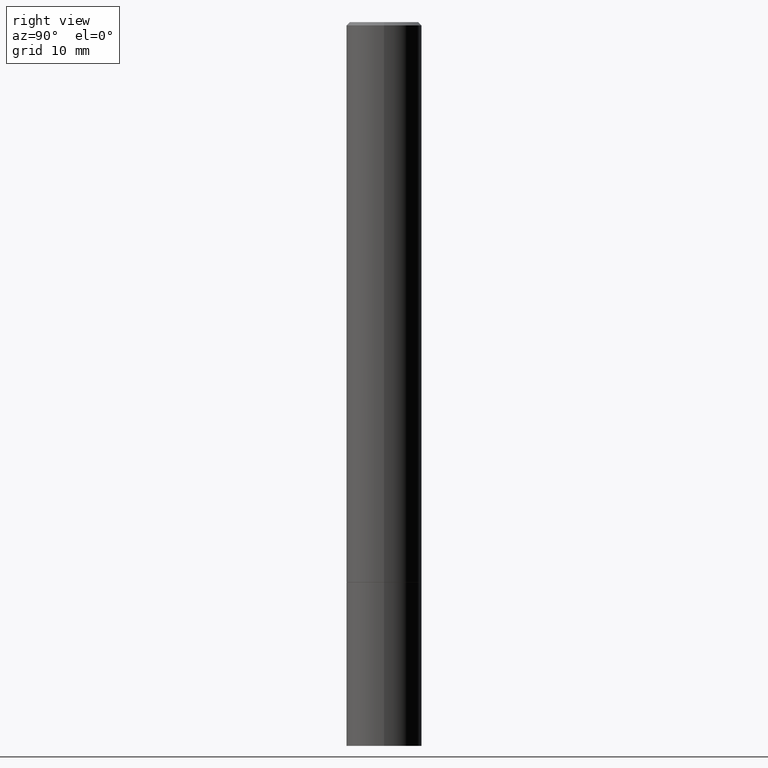
[diagram: clean part render]
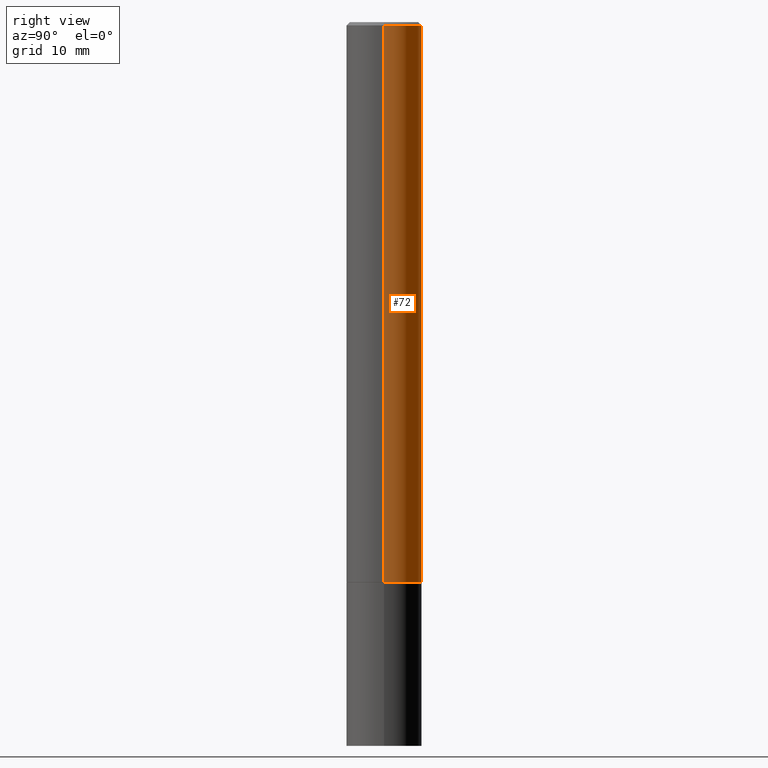
[diagram: same view with one face highlighted and labeled with its STEP entity id]
A machine part, right view. The second image highlights one B-rep face of the part: STEP entity #72.
In plain terms, the highlighted cylindrical surface (partial cylindrical patch) has radius 5.9995 mm, axis along (-0, 0, 1).
Its self-contained STEP definition (entity closure, byte-faithful):
#7 = LINE ( 'NONE', #111, #307 ) ;
#9 = AXIS2_PLACEMENT_3D ( 'NONE', #294, #138, #312 ) ;
#25 = EDGE_CURVE ( 'NONE', #357, #364, #7, .T. ) ;
#27 = ORIENTED_EDGE ( 'NONE', *, *, #247, .F. ) ;
#40 = CARTESIAN_POINT ( 'NONE',  ( -0.2361999999999995214, 1.579546157692629677E-15, -0.02000000000000006287 ) ) ;
#48 = DIRECTION ( 'NONE',  ( 1.000000000000000000, -6.982962677686265133E-15, 0.000000000000000000 ) ) ;
#52 = ORIENTED_EDGE ( 'NONE', *, *, #25, .F. ) ;
#72 = ADVANCED_FACE ( 'NONE', ( #95 ), #213, .T. ) ;
#73 = VECTOR ( 'NONE', #317, 39.37007874015748143 ) ;
#74 = DIRECTION ( 'NONE',  ( -2.445468806185136597E-29, 3.491481338843145583E-15, 1.000000000000000000 ) ) ;
#89 = CARTESIAN_POINT ( 'NONE',  ( -0.2361999999999997712, 1.678301941865355014E-15, -1.161852468318207636E-29 ) ) ;
#95 = FACE_OUTER_BOUND ( 'NONE', #310, .T. ) ;
#105 = ORIENTED_EDGE ( 'NONE', *, *, #117, .T. ) ;
#111 = CARTESIAN_POINT ( 'NONE',  ( 0.2361999999999997712, -1.649375784469494553E-15, 1.151752954442998827E-29 ) ) ;
#112 = DIRECTION ( 'NONE',  ( -2.445468806185136877E-29, 3.491481338843145188E-15, 1.000000000000000000 ) ) ;
#117 = EDGE_CURVE ( 'NONE', #136, #123, #184, .T. ) ;
#121 = CARTESIAN_POINT ( 'NONE',  ( 0.2361999999999995214, -1.690279253850495418E-15, -0.02000000000000006287 ) ) ;
#123 = VERTEX_POINT ( 'NONE', #40 ) ;
#136 = VERTEX_POINT ( 'NONE', #239 ) ;
#138 = DIRECTION ( 'NONE',  ( -2.445468806185136597E-29, 3.491481338843145583E-15, 1.000000000000000000 ) ) ;
#156 = CARTESIAN_POINT ( 'NONE',  ( 0.2361999999999999933, -1.388003491443703489E-14, -3.502999999999999670 ) ) ;
#184 = LINE ( 'NONE', #89, #73 ) ;
#213 = CYLINDRICAL_SURFACE ( 'NONE', #9, 0.2361999999999997712 ) ;
#228 = DIRECTION ( 'NONE',  ( 1.000000000000000000, -6.982962677686266711E-15, 0.000000000000000000 ) ) ;
#239 = CARTESIAN_POINT ( 'NONE',  ( -0.2362000000000000210, -4.471942436506837337E-15, -3.502999999999999670 ) ) ;
#247 = EDGE_CURVE ( 'NONE', #364, #123, #332, .T. ) ;
#250 = ORIENTED_EDGE ( 'NONE', *, *, #321, .T. ) ;
#254 = CIRCLE ( 'NONE', #291, 0.2361999999999999933 ) ;
#272 = CARTESIAN_POINT ( 'NONE',  ( 8.566477228066533777E-29, -1.223065912996753836E-14, -3.502999999999999670 ) ) ;
#278 = CARTESIAN_POINT ( 'NONE',  ( 4.890937612370288923E-31, -6.982962677686312563E-17, -0.02000000000000006287 ) ) ;
#291 = AXIS2_PLACEMENT_3D ( 'NONE', #272, #74, #48 ) ;
#294 = CARTESIAN_POINT ( 'NONE',  ( 0.000000000000000000, 0.000000000000000000, 0.000000000000000000 ) ) ;
#302 = DIRECTION ( 'NONE',  ( -2.445468806185136597E-29, 3.491481338843145583E-15, 1.000000000000000000 ) ) ;
#307 = VECTOR ( 'NONE', #112, 39.37007874015748143 ) ;
#310 = EDGE_LOOP ( 'NONE', ( #250, #105, #27, #52 ) ) ;
#312 = DIRECTION ( 'NONE',  ( 1.000000000000000000, -6.982962677686266711E-15, 4.876176775795935232E-29 ) ) ;
#317 = DIRECTION ( 'NONE',  ( -2.445468806185136877E-29, 3.491481338843145188E-15, 1.000000000000000000 ) ) ;
#321 = EDGE_CURVE ( 'NONE', #357, #136, #254, .T. ) ;
#332 = CIRCLE ( 'NONE', #343, 0.2361999999999995214 ) ;
#343 = AXIS2_PLACEMENT_3D ( 'NONE', #278, #302, #228 ) ;
#357 = VERTEX_POINT ( 'NONE', #156 ) ;
#364 = VERTEX_POINT ( 'NONE', #121 ) ;